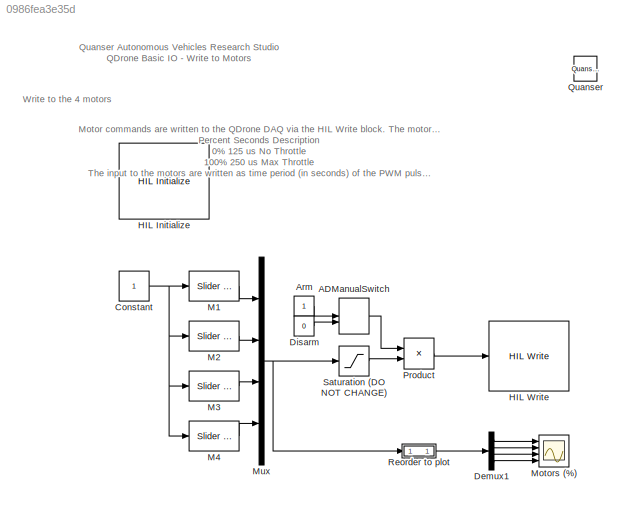
MODEL slx_0986fea3e35d
KIND model
CONFIG AbsTol = auto
CONFIG EnableMultiTasking = on
CONFIG FixedStep = 0.001
CONFIG InitFcn = set_param('Write_Motors/ADManualSwitch', 'sw', '0');
CONFIG MaxStep = auto
CONFIG MinStep = auto
CONFIG RelTol = 1e-3
CONFIG SampleTimeConstraint = Unconstrained
CONFIG Solver = ode2
CONFIG SolverName = ode2
CONFIG StartTime = 0.0
CONFIG StopTime = inf
WORKSPACE source: MAT-file member
WORKSPACE target_system = 1
BLOCK [ManualSwitch] ADManualSwitch
  CurrentSetting = 0
BLOCK [Constant] Arm
BLOCK [Constant] Constant
BLOCK [Demux] Demux1
  DisplayOption = bar
  Ports = [1, 4]
BLOCK [Constant] Disarm
  Value = 0
BLOCK [Reference] HIL Initialize  REF=quarc_library/Data Acquisition/Generic/Configuration/HIL Initialize
  AttributesFormatString = %<object_name> (%<board_type>-%<board_number>)
  Ports = []
  SourceBlock = quarc_library/Data Acquisition/Generic/Configuration/HIL Initialize
  SourceProductName = The database <userpath>\AppData\Roaming\MathWorks\MATLAB\R2017a\slblocks_master.db is locked, or a table in the database is locked. (database is locked)
  SourceType = HIL Initialize
  UserDataPersistent = on
BLOCK [Reference] HIL Write  REF=quarc_library/Data Acquisition/Generic/Immediate I//O/HIL Write
  AttributesFormatString = (%<object_name>)
  Ports = [1]
  SourceBlock = quarc_library/Data Acquisition/Generic/Immediate I//O/HIL Write
  SourceProductName = The database <userpath>\AppData\Roaming\MathWorks\MATLAB\R2017a\slblocks_master.db is locked, or a table in the database is locked. (database is locked)
  SourceType = HIL Write
  UserDataPersistent = on
BLOCK [Reference] M1  REF=simulink/Math
Operations/Slider
Gain
  Ports = [1, 1]
  SourceBlock = simulink/Math\nOperations/Slider\nGain
  SourceProductBaseCode = SL
  SourceProductName = Simulink
  SourceType = Slider Gain
BLOCK [Reference] M2  REF=simulink/Math
Operations/Slider
Gain
  Ports = [1, 1]
  SourceBlock = simulink/Math\nOperations/Slider\nGain
  SourceProductBaseCode = SL
  SourceProductName = Simulink
  SourceType = Slider Gain
BLOCK [Reference] M3  REF=simulink/Math
Operations/Slider
Gain
  Ports = [1, 1]
  SourceBlock = simulink/Math\nOperations/Slider\nGain
  SourceProductBaseCode = SL
  SourceProductName = Simulink
  SourceType = Slider Gain
BLOCK [Reference] M4  REF=simulink/Math
Operations/Slider
Gain
  Ports = [1, 1]
  SourceBlock = simulink/Math\nOperations/Slider\nGain
  SourceProductBaseCode = SL
  SourceProductName = Simulink
  SourceType = Slider Gain
BLOCK [Scope] Motors (%)
  NumInputPorts = 4
  Ports = [4]
  ScopeSpecificationString = Simulink.scopes.TimeScopeBlockCfg('CurrentConfiguration', extmgr.ConfigurationSet(extmgr.Configuration('Core','General UI',true),extmgr.Configuration('Core','Source UI',true),extmgr.Configuration('Sources','WiredSimulink',true),extmgr.Configuration('Visuals','Time Domain',true,'SerializedDisplays',{struct('MinYLimReal','-0.005','MaxYLimReal','1','YLabelReal','','MinYLimMag','0.00000','MaxYLimMag',...<+3420ch>
BLOCK [Mux] Mux
  DisplayOption = bar
  Ports = [4, 1]
BLOCK [Product] Product
  InputSameDT = off
  OutDataTypeStr = Inherit: Inherit via internal rule
  Ports = [2, 1]
  RndMeth = Floor
  SaturateOnIntegerOverflow = off
BLOCK [Reference] Quanser  REF=quarc_library/Logos/Quanser
  Ports = []
  SourceBlock = quarc_library/Logos/Quanser
  SourceProductName = QUARC Targets
  SourceType = Powered by Quanser
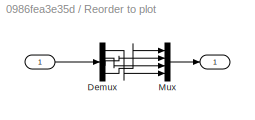
BLOCK [SubSystem] Reorder to plot
  Ports = [1, 1]
  RequestExecContextInheritance = off
  Variant = off
BLOCK [Inport] Reorder to plot/ 
  IconDisplay = Port number
BLOCK [Outport] Reorder to plot/  
  IconDisplay = Port number
BLOCK [Demux] Reorder to plot/Demux
  DisplayOption = bar
  Ports = [1, 4]
BLOCK [Mux] Reorder to plot/Mux
  DisplayOption = bar
  Ports = [4, 1]
BLOCK [Saturate] Saturation (DO NOT CHANGE)
  InputPortMap = u0
  LowerLimit = 125e-6
  Ports = [1, 1]
  UpperLimit = 137.5e-6
ANNOTATION (root): Quanser Autonomous Vehicles Research Studio QDrone Basic IO - Write to Motors
ANNOTATION (root): Motor commands are written to the QDrone DAQ via the HIL Write block. The motor command inputs are mapped for a Oneshot 125 protocol as follows: Percent Seconds Description 0% 125 us No Throttle 100% 250 us Max Throttle The input to the motors are written as time period (in seconds) of the PWM pulses (at 2kHz).
ANNOTATION (root): Write to the 4 motors
LINE ADManualSwitch:1 -> Product:1
LINE Arm:1 -> ADManualSwitch:1
NET Constant:1 -> M1:1, M2:1, M3:1, M4:1
LINE Demux1:1 -> Motors (%):1
LINE Demux1:2 -> Motors (%):2
LINE Demux1:3 -> Motors (%):3
LINE Demux1:4 -> Motors (%):4
LINE Disarm:1 -> ADManualSwitch:2
LINE M1:1 -> Mux:1
LINE M2:1 -> Mux:2
LINE M3:1 -> Mux:3
LINE M4:1 -> Mux:4
NET Mux:1 -> Reorder to plot:1, Saturation (DO NOT CHANGE):1
LINE Product:1 -> HIL Write:1
LINE Reorder to plot/ :1 -> Reorder to plot/Demux:1
LINE Reorder to plot/Demux:1 -> Reorder to plot/Mux:4
LINE Reorder to plot/Demux:2 -> Reorder to plot/Mux:3
LINE Reorder to plot/Demux:3 -> Reorder to plot/Mux:2
LINE Reorder to plot/Demux:4 -> Reorder to plot/Mux:1
LINE Reorder to plot/Mux:1 -> Reorder to plot/  :1
LINE Reorder to plot:1 -> Demux1:1
LINE Saturation (DO NOT CHANGE):1 -> Product:2
note: NET lines group one-source signal fan-out (src -> all destinations, sorted); 1:1 wires keep LINE
